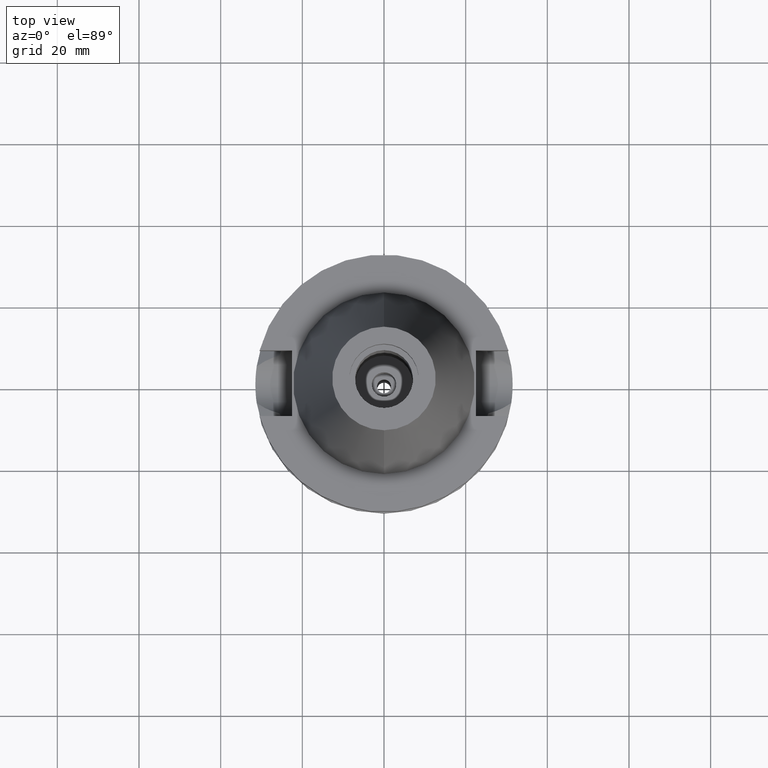
[diagram: clean part render]
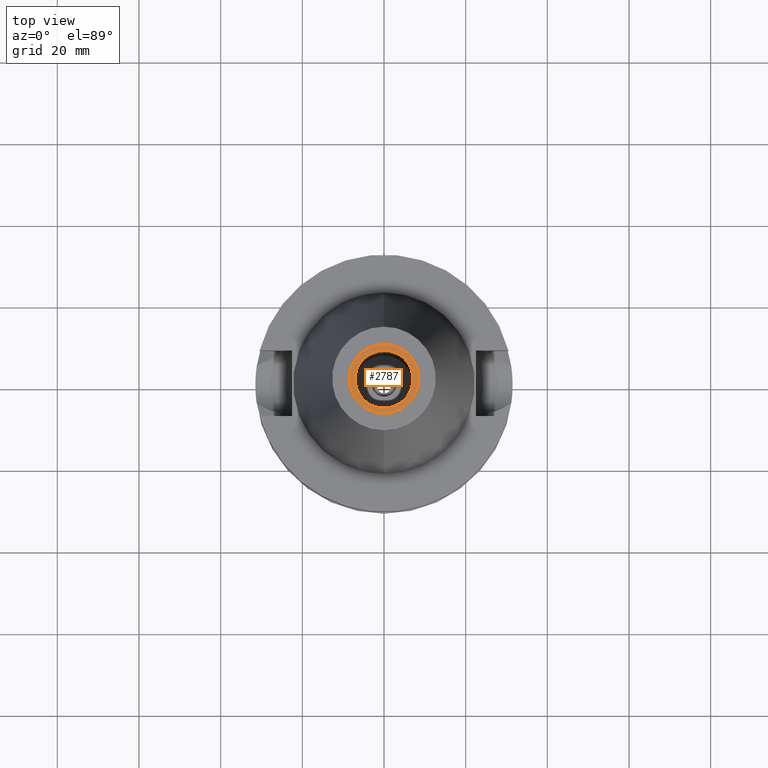
[diagram: same view with one face highlighted and labeled with its STEP entity id]
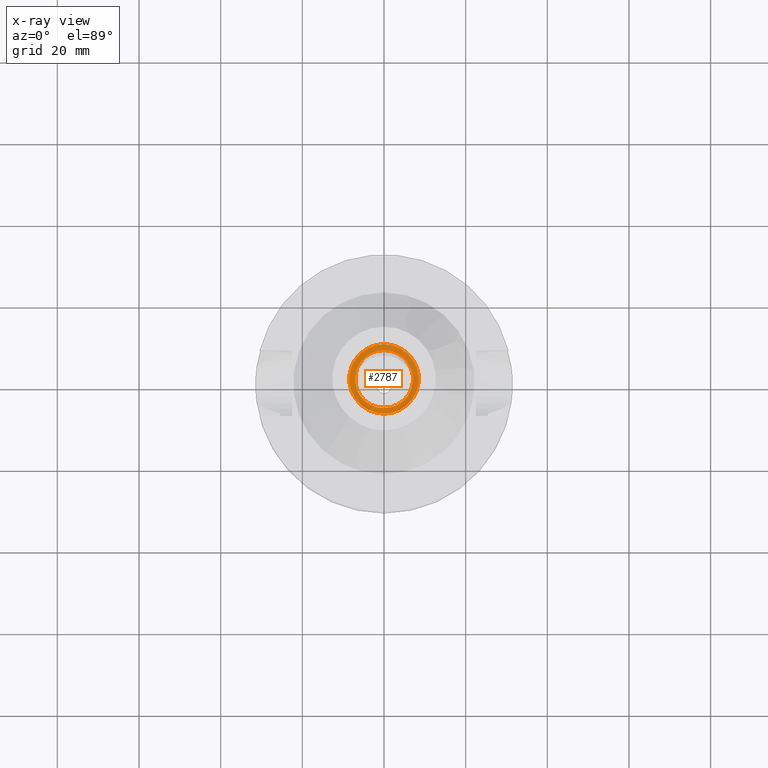
[diagram: x-ray of the same camera — body ghosted, the highlighted face saturated]
A machine part, top view. The second image highlights one B-rep face of the part: STEP entity #2787.
The next image is the same camera in x-ray: the body ghosted, the highlighted face saturated — about 0% of this face is hidden behind the body in this view.
In plain terms, the highlighted planar face has unit normal (0, 0, -1).
Its self-contained STEP definition (entity closure, byte-faithful):
#48 = VERTEX_POINT ( 'NONE', #1706 ) ;
#61 = CARTESIAN_POINT ( 'NONE',  ( 0.0000000000000000000, 2.118455265505000055E-14, 56.39999999999999858 ) ) ;
#79 = CARTESIAN_POINT ( 'NONE',  ( 0.0000000000000000000, 1.915347593865999799E-14, 56.39999999999999858 ) ) ;
#233 = EDGE_CURVE ( 'NONE', #1430, #454, #1193, .T. ) ;
#300 = EDGE_LOOP ( 'NONE', ( #650, #1362 ) ) ;
#342 = CARTESIAN_POINT ( 'NONE',  ( 0.0000000000000000000, -7.100000000000000533, 56.39999999999999858 ) ) ;
#454 = VERTEX_POINT ( 'NONE', #1345 ) ;
#650 = ORIENTED_EDGE ( 'NONE', *, *, #1443, .F. ) ;
#690 = DIRECTION ( 'NONE',  ( 0.0000000000000000000, 1.000000000000000000, 0.0000000000000000000 ) ) ;
#905 = CARTESIAN_POINT ( 'NONE',  ( 0.0000000000000000000, 2.118455265505000055E-14, 56.39999999999999858 ) ) ;
#977 = DIRECTION ( 'NONE',  ( 0.0000000000000000000, -1.000000000000000000, 0.0000000000000000000 ) ) ;
#1193 = CIRCLE ( 'NONE', #1573, 8.500000000000000000 ) ;
#1301 = DIRECTION ( 'NONE',  ( 0.0000000000000000000, 0.0000000000000000000, 1.000000000000000000 ) ) ;
#1317 = CARTESIAN_POINT ( 'NONE',  ( 0.0000000000000000000, 2.118455265505000055E-14, 56.39999999999999858 ) ) ;
#1328 = DIRECTION ( 'NONE',  ( 0.0000000000000000000, -1.000000000000000000, 0.0000000000000000000 ) ) ;
#1345 = CARTESIAN_POINT ( 'NONE',  ( 0.0000000000000000000, 8.500000000000000000, 56.39999999999999858 ) ) ;
#1362 = ORIENTED_EDGE ( 'NONE', *, *, #233, .F. ) ;
#1421 = CARTESIAN_POINT ( 'NONE',  ( 0.0000000000000000000, -8.500000000000000000, 56.39999999999999858 ) ) ;
#1426 = CIRCLE ( 'NONE', #2704, 7.100000000000000533 ) ;
#1430 = VERTEX_POINT ( 'NONE', #1421 ) ;
#1443 = EDGE_CURVE ( 'NONE', #454, #1430, #1554, .T. ) ;
#1531 = VERTEX_POINT ( 'NONE', #342 ) ;
#1554 = CIRCLE ( 'NONE', #2976, 8.500000000000000000 ) ;
#1573 = AXIS2_PLACEMENT_3D ( 'NONE', #1317, #1984, #2249 ) ;
#1651 = PLANE ( 'NONE',  #2320 ) ;
#1706 = CARTESIAN_POINT ( 'NONE',  ( 0.0000000000000000000, 7.100000000000000533, 56.39999999999999858 ) ) ;
#1708 = DIRECTION ( 'NONE',  ( 0.0000000000000000000, 0.0000000000000000000, -1.000000000000000000 ) ) ;
#1821 = CARTESIAN_POINT ( 'NONE',  ( 0.0000000000000000000, 2.118455265505000055E-14, 56.39999999999999858 ) ) ;
#1836 = FACE_BOUND ( 'NONE', #2078, .T. ) ;
#1858 = CIRCLE ( 'NONE', #2747, 7.100000000000000533 ) ;
#1910 = EDGE_CURVE ( 'NONE', #1531, #48, #1858, .T. ) ;
#1984 = DIRECTION ( 'NONE',  ( 0.0000000000000000000, 0.0000000000000000000, -1.000000000000000000 ) ) ;
#2078 = EDGE_LOOP ( 'NONE', ( #2928, #2279 ) ) ;
#2249 = DIRECTION ( 'NONE',  ( 0.0000000000000000000, -1.000000000000000000, 0.0000000000000000000 ) ) ;
#2279 = ORIENTED_EDGE ( 'NONE', *, *, #1910, .F. ) ;
#2307 = FACE_OUTER_BOUND ( 'NONE', #300, .T. ) ;
#2320 = AXIS2_PLACEMENT_3D ( 'NONE', #79, #1708, #977 ) ;
#2559 = DIRECTION ( 'NONE',  ( 0.0000000000000000000, 1.000000000000000000, 0.0000000000000000000 ) ) ;
#2704 = AXIS2_PLACEMENT_3D ( 'NONE', #1821, #2769, #690 ) ;
#2747 = AXIS2_PLACEMENT_3D ( 'NONE', #905, #1301, #1328 ) ;
#2763 = EDGE_CURVE ( 'NONE', #48, #1531, #1426, .T. ) ;
#2769 = DIRECTION ( 'NONE',  ( 0.0000000000000000000, 0.0000000000000000000, 1.000000000000000000 ) ) ;
#2787 = ADVANCED_FACE ( 'NONE', ( #2307, #1836 ), #1651, .F. ) ;
#2815 = DIRECTION ( 'NONE',  ( 0.0000000000000000000, 0.0000000000000000000, -1.000000000000000000 ) ) ;
#2928 = ORIENTED_EDGE ( 'NONE', *, *, #2763, .F. ) ;
#2976 = AXIS2_PLACEMENT_3D ( 'NONE', #61, #2815, #2559 ) ;